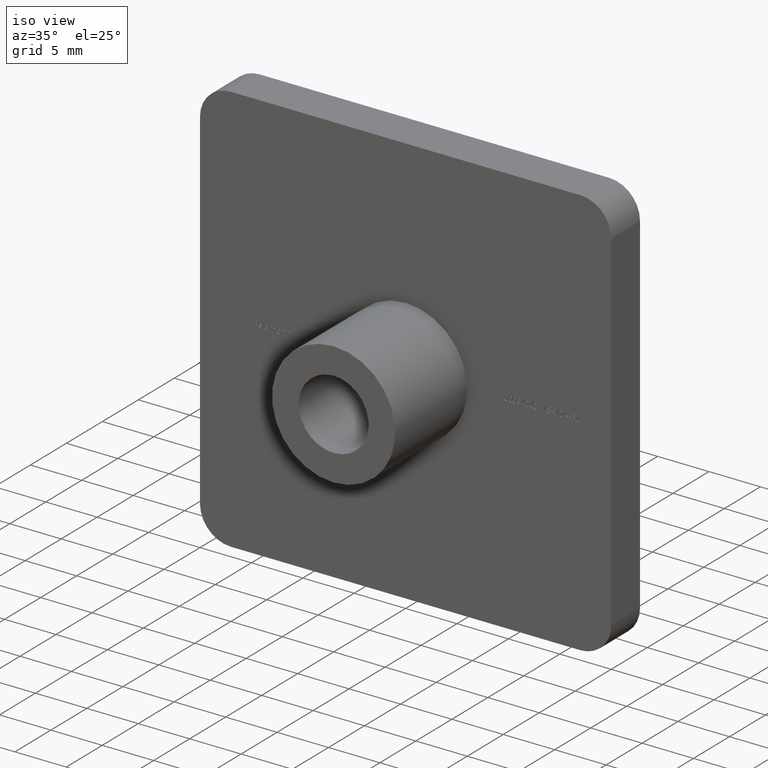
[diagram: clean part render]
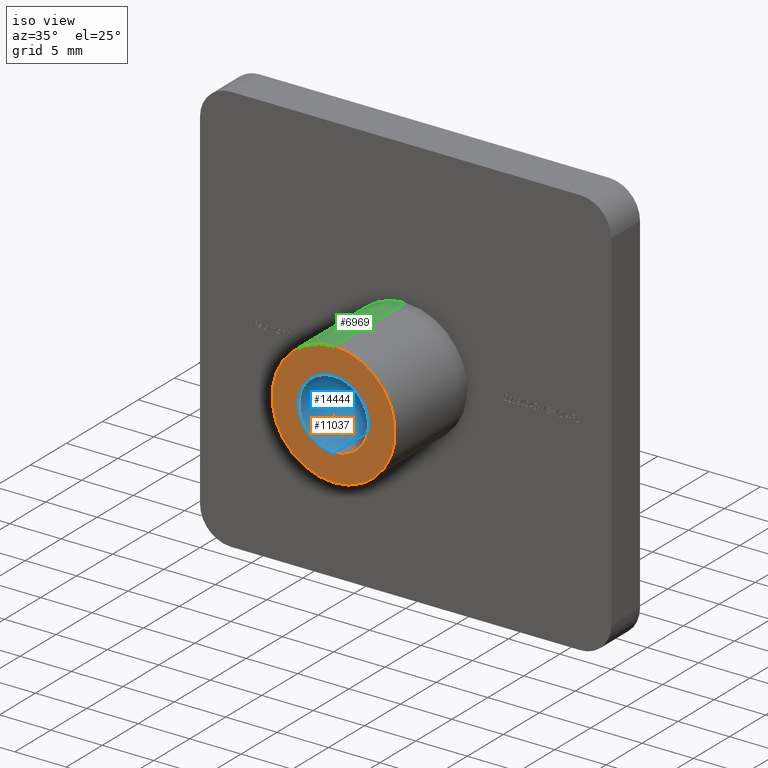
[diagram: same view with three faces highlighted in distinct colors, each labeled with its STEP entity id]
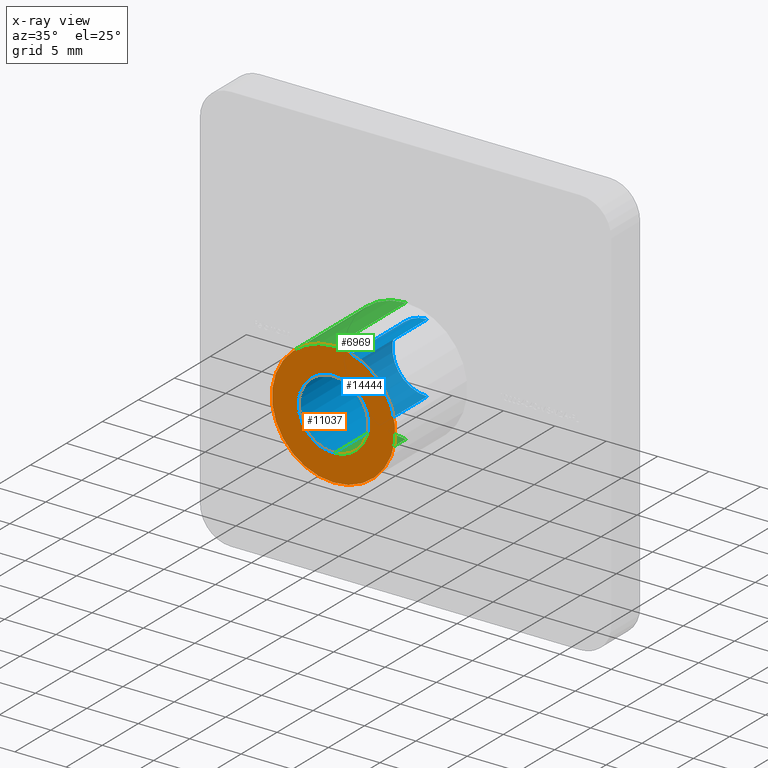
[diagram: x-ray of the same camera — body ghosted, the three highlighted faces saturated]
A machine part, iso view with three faces highlighted in distinct colors.
The next image is the same camera in x-ray (body ghosted, the three faces saturated) — at least one of them is partly hidden behind the body in this view.
Their STEP definitions:

[orange] entity #11037 — the highlighted planar face has unit normal (0, -1, 0).
#323 = PLANE ( 'NONE',  #2205 ) ;
#2019 = DIRECTION ( 'NONE',  ( 0.0000000000000000000, -1.000000000000000000, 0.0000000000000000000 ) ) ;
#2205 = AXIS2_PLACEMENT_3D ( 'NONE', #16894, #11154, #6863 ) ;
#2218 = CARTESIAN_POINT ( 'NONE',  ( 7.347880794884120700E-016, -10.00000000000000000, -6.000000000000000900 ) ) ;
#2531 = DIRECTION ( 'NONE',  ( -0.0000000000000000000, -1.000000000000000000, -0.0000000000000000000 ) ) ;
#2681 = EDGE_CURVE ( 'NONE', #14487, #17839, #10851, .T. ) ;
#3068 = EDGE_LOOP ( 'NONE', ( #13583, #9582 ) ) ;
#3330 = DIRECTION ( 'NONE',  ( 0.0000000000000000000, 0.0000000000000000000, -1.000000000000000000 ) ) ;
#3440 = DIRECTION ( 'NONE',  ( 0.0000000000000000000, 0.0000000000000000000, -1.000000000000000000 ) ) ;
#3786 = FACE_BOUND ( 'NONE', #3068, .T. ) ;
#5538 = AXIS2_PLACEMENT_3D ( 'NONE', #16183, #9184, #3330 ) ;
#6863 = DIRECTION ( 'NONE',  ( 0.0000000000000000000, -0.0000000000000000000, -1.000000000000000000 ) ) ;
#7283 = CARTESIAN_POINT ( 'NONE',  ( 0.0000000000000000000, -10.00000000000000200, -3.399999999999987900 ) ) ;
#7754 = EDGE_LOOP ( 'NONE', ( #7906, #15216 ) ) ;
#7782 = DIRECTION ( 'NONE',  ( -0.0000000000000000000, -1.000000000000000000, -0.0000000000000000000 ) ) ;
#7906 = ORIENTED_EDGE ( 'NONE', *, *, #2681, .T. ) ;
#8569 = CIRCLE ( 'NONE', #15110, 3.399999999999987900 ) ;
#9177 = EDGE_CURVE ( 'NONE', #11616, #13669, #10392, .T. ) ;
#9184 = DIRECTION ( 'NONE',  ( 0.0000000000000000000, -1.000000000000000000, 0.0000000000000000000 ) ) ;
#9582 = ORIENTED_EDGE ( 'NONE', *, *, #12625, .F. ) ;
#10392 = CIRCLE ( 'NONE', #12035, 3.399999999999987900 ) ;
#10521 = CARTESIAN_POINT ( 'NONE',  ( 4.163799117100988200E-016, -10.00000000000000200, 3.399999999999987900 ) ) ;
#10612 = FACE_OUTER_BOUND ( 'NONE', #7754, .T. ) ;
#10851 = CIRCLE ( 'NONE', #5538, 6.000000000000000900 ) ;
#11037 = ADVANCED_FACE ( 'NONE', ( #3786, #10612 ), #323, .T. ) ;
#11154 = DIRECTION ( 'NONE',  ( 0.0000000000000000000, -1.000000000000000000, 0.0000000000000000000 ) ) ;
#11155 = CARTESIAN_POINT ( 'NONE',  ( 0.0000000000000000000, -10.00000000000000200, -0.0000000000000000000 ) ) ;
#11616 = VERTEX_POINT ( 'NONE', #7283 ) ;
#12031 = DIRECTION ( 'NONE',  ( 0.0000000000000000000, 0.0000000000000000000, -1.000000000000000000 ) ) ;
#12035 = AXIS2_PLACEMENT_3D ( 'NONE', #11155, #2531, #18388 ) ;
#12221 = CARTESIAN_POINT ( 'NONE',  ( 0.0000000000000000000, -10.00000000000000200, -0.0000000000000000000 ) ) ;
#12625 = EDGE_CURVE ( 'NONE', #13669, #11616, #8569, .T. ) ;
#13301 = EDGE_CURVE ( 'NONE', #17839, #14487, #18019, .T. ) ;
#13583 = ORIENTED_EDGE ( 'NONE', *, *, #9177, .F. ) ;
#13669 = VERTEX_POINT ( 'NONE', #10521 ) ;
#13958 = AXIS2_PLACEMENT_3D ( 'NONE', #14986, #2019, #12031 ) ;
#14487 = VERTEX_POINT ( 'NONE', #16121 ) ;
#14986 = CARTESIAN_POINT ( 'NONE',  ( 0.0000000000000000000, -10.00000000000000000, 0.0000000000000000000 ) ) ;
#15110 = AXIS2_PLACEMENT_3D ( 'NONE', #12221, #7782, #3440 ) ;
#15216 = ORIENTED_EDGE ( 'NONE', *, *, #13301, .T. ) ;
#16121 = CARTESIAN_POINT ( 'NONE',  ( 0.0000000000000000000, -10.00000000000000000, 6.000000000000000900 ) ) ;
#16183 = CARTESIAN_POINT ( 'NONE',  ( 0.0000000000000000000, -10.00000000000000000, 0.0000000000000000000 ) ) ;
#16894 = CARTESIAN_POINT ( 'NONE',  ( 0.0000000000000000000, -10.00000000000000000, 0.0000000000000000000 ) ) ;
#17839 = VERTEX_POINT ( 'NONE', #2218 ) ;
#18019 = CIRCLE ( 'NONE', #13958, 6.000000000000000900 ) ;
#18388 = DIRECTION ( 'NONE',  ( 0.0000000000000000000, 0.0000000000000000000, -1.000000000000000000 ) ) ;

[blue] entity #14444 — the highlighted cylindrical surface (partial cylindrical patch) has radius 3.4 mm, axis along (-0, -1, -0).
#960 = AXIS2_PLACEMENT_3D ( 'NONE', #1412, #13055, #1535 ) ;
#1125 = ORIENTED_EDGE ( 'NONE', *, *, #11071, .F. ) ;
#1412 = CARTESIAN_POINT ( 'NONE',  ( 0.0000000000000000000, 2.999999999999988900, 0.0000000000000000000 ) ) ;
#1535 = DIRECTION ( 'NONE',  ( 0.0000000000000000000, 0.0000000000000000000, 1.000000000000000000 ) ) ;
#3167 = ORIENTED_EDGE ( 'NONE', *, *, #8824, .T. ) ;
#3401 = CARTESIAN_POINT ( 'NONE',  ( 0.0000000000000000000, 2.999999999999988900, -3.399999999999991500 ) ) ;
#3440 = DIRECTION ( 'NONE',  ( 0.0000000000000000000, 0.0000000000000000000, -1.000000000000000000 ) ) ;
#3563 = CIRCLE ( 'NONE', #960, 3.399999999999991500 ) ;
#4321 = VECTOR ( 'NONE', #8572, 1000.000000000000000 ) ;
#4572 = EDGE_LOOP ( 'NONE', ( #3167, #12289, #11265, #1125 ) ) ;
#4578 = CARTESIAN_POINT ( 'NONE',  ( 0.0000000000000000000, -10.00000000000000000, -0.0000000000000000000 ) ) ;
#4641 = DIRECTION ( 'NONE',  ( -0.0000000000000000000, -1.000000000000000000, -0.0000000000000000000 ) ) ;
#5046 = EDGE_CURVE ( 'NONE', #8929, #13669, #14241, .T. ) ;
#6043 = DIRECTION ( 'NONE',  ( 0.0000000000000000000, 0.0000000000000000000, -1.000000000000000000 ) ) ;
#7283 = CARTESIAN_POINT ( 'NONE',  ( 0.0000000000000000000, -10.00000000000000200, -3.399999999999987900 ) ) ;
#7782 = DIRECTION ( 'NONE',  ( -0.0000000000000000000, -1.000000000000000000, -0.0000000000000000000 ) ) ;
#8304 = FACE_OUTER_BOUND ( 'NONE', #4572, .T. ) ;
#8569 = CIRCLE ( 'NONE', #15110, 3.399999999999987900 ) ;
#8572 = DIRECTION ( 'NONE',  ( -0.0000000000000000000, -1.000000000000000000, -0.0000000000000000000 ) ) ;
#8824 = EDGE_CURVE ( 'NONE', #9023, #8929, #3563, .T. ) ;
#8929 = VERTEX_POINT ( 'NONE', #15559 ) ;
#9023 = VERTEX_POINT ( 'NONE', #3401 ) ;
#10521 = CARTESIAN_POINT ( 'NONE',  ( 4.163799117100988200E-016, -10.00000000000000200, 3.399999999999987900 ) ) ;
#11071 = EDGE_CURVE ( 'NONE', #9023, #11616, #12374, .T. ) ;
#11265 = ORIENTED_EDGE ( 'NONE', *, *, #12625, .T. ) ;
#11616 = VERTEX_POINT ( 'NONE', #7283 ) ;
#12113 = AXIS2_PLACEMENT_3D ( 'NONE', #4578, #4641, #6043 ) ;
#12221 = CARTESIAN_POINT ( 'NONE',  ( 0.0000000000000000000, -10.00000000000000200, -0.0000000000000000000 ) ) ;
#12289 = ORIENTED_EDGE ( 'NONE', *, *, #5046, .T. ) ;
#12372 = CARTESIAN_POINT ( 'NONE',  ( 0.0000000000000000000, -10.00000000000000000, -3.399999999999991500 ) ) ;
#12374 = LINE ( 'NONE', #12372, #17614 ) ;
#12625 = EDGE_CURVE ( 'NONE', #13669, #11616, #8569, .T. ) ;
#13055 = DIRECTION ( 'NONE',  ( -0.0000000000000000000, 1.000000000000000000, -0.0000000000000000000 ) ) ;
#13479 = CYLINDRICAL_SURFACE ( 'NONE', #12113, 3.399999999999991500 ) ;
#13669 = VERTEX_POINT ( 'NONE', #10521 ) ;
#14241 = LINE ( 'NONE', #15551, #4321 ) ;
#14444 = ADVANCED_FACE ( 'NONE', ( #8304 ), #13479, .F. ) ;
#15110 = AXIS2_PLACEMENT_3D ( 'NONE', #12221, #7782, #3440 ) ;
#15551 = CARTESIAN_POINT ( 'NONE',  ( 4.163799117100990700E-016, -10.00000000000000000, 3.399999999999991500 ) ) ;
#15559 = CARTESIAN_POINT ( 'NONE',  ( 4.163799117100990700E-016, 2.999999999999988900, 3.399999999999991500 ) ) ;
#17146 = DIRECTION ( 'NONE',  ( -0.0000000000000000000, -1.000000000000000000, -0.0000000000000000000 ) ) ;
#17614 = VECTOR ( 'NONE', #17146, 1000.000000000000000 ) ;

[green] entity #6969 — the highlighted cylindrical surface (partial cylindrical patch) has radius 6 mm, axis along (-0, 1, -0).
#1580 = ORIENTED_EDGE ( 'NONE', *, *, #3536, .F. ) ;
#2023 = AXIS2_PLACEMENT_3D ( 'NONE', #10469, #12271, #9399 ) ;
#2100 = EDGE_LOOP ( 'NONE', ( #1580, #16095, #11551, #7168 ) ) ;
#2218 = CARTESIAN_POINT ( 'NONE',  ( 7.347880794884120700E-016, -10.00000000000000000, -6.000000000000000900 ) ) ;
#2455 = CARTESIAN_POINT ( 'NONE',  ( 0.0000000000000000000, -10.00000000000000000, 6.000000000000000900 ) ) ;
#2497 = DIRECTION ( 'NONE',  ( 0.0000000000000000000, 0.0000000000000000000, 1.000000000000000000 ) ) ;
#2681 = EDGE_CURVE ( 'NONE', #14487, #17839, #10851, .T. ) ;
#2876 = CARTESIAN_POINT ( 'NONE',  ( 7.347880794884120700E-016, 0.0000000000000000000, -6.000000000000000900 ) ) ;
#3330 = DIRECTION ( 'NONE',  ( 0.0000000000000000000, 0.0000000000000000000, -1.000000000000000000 ) ) ;
#3536 = EDGE_CURVE ( 'NONE', #17839, #8859, #6395, .T. ) ;
#5510 = VERTEX_POINT ( 'NONE', #15511 ) ;
#5538 = AXIS2_PLACEMENT_3D ( 'NONE', #16183, #9184, #3330 ) ;
#5764 = LINE ( 'NONE', #2455, #9156 ) ;
#6352 = CYLINDRICAL_SURFACE ( 'NONE', #2023, 6.000000000000000900 ) ;
#6395 = LINE ( 'NONE', #12222, #15616 ) ;
#6804 = AXIS2_PLACEMENT_3D ( 'NONE', #18474, #11186, #2497 ) ;
#6969 = ADVANCED_FACE ( 'NONE', ( #17624 ), #6352, .T. ) ;
#7168 = ORIENTED_EDGE ( 'NONE', *, *, #12319, .T. ) ;
#7236 = DIRECTION ( 'NONE',  ( -0.0000000000000000000, 1.000000000000000000, -0.0000000000000000000 ) ) ;
#8859 = VERTEX_POINT ( 'NONE', #2876 ) ;
#9156 = VECTOR ( 'NONE', #7236, 1000.000000000000000 ) ;
#9184 = DIRECTION ( 'NONE',  ( 0.0000000000000000000, -1.000000000000000000, 0.0000000000000000000 ) ) ;
#9399 = DIRECTION ( 'NONE',  ( 0.0000000000000000000, 0.0000000000000000000, 1.000000000000000000 ) ) ;
#10469 = CARTESIAN_POINT ( 'NONE',  ( 0.0000000000000000000, -10.00000000000000000, 0.0000000000000000000 ) ) ;
#10851 = CIRCLE ( 'NONE', #5538, 6.000000000000000900 ) ;
#11186 = DIRECTION ( 'NONE',  ( -0.0000000000000000000, -1.000000000000000000, -0.0000000000000000000 ) ) ;
#11551 = ORIENTED_EDGE ( 'NONE', *, *, #17504, .T. ) ;
#12222 = CARTESIAN_POINT ( 'NONE',  ( 7.347880794884120700E-016, -10.00000000000000000, -6.000000000000000900 ) ) ;
#12271 = DIRECTION ( 'NONE',  ( -0.0000000000000000000, 1.000000000000000000, -0.0000000000000000000 ) ) ;
#12319 = EDGE_CURVE ( 'NONE', #5510, #8859, #12380, .T. ) ;
#12380 = CIRCLE ( 'NONE', #6804, 6.000000000000000900 ) ;
#14487 = VERTEX_POINT ( 'NONE', #16121 ) ;
#15511 = CARTESIAN_POINT ( 'NONE',  ( 0.0000000000000000000, 0.0000000000000000000, 6.000000000000000900 ) ) ;
#15616 = VECTOR ( 'NONE', #16289, 1000.000000000000000 ) ;
#16095 = ORIENTED_EDGE ( 'NONE', *, *, #2681, .F. ) ;
#16121 = CARTESIAN_POINT ( 'NONE',  ( 0.0000000000000000000, -10.00000000000000000, 6.000000000000000900 ) ) ;
#16183 = CARTESIAN_POINT ( 'NONE',  ( 0.0000000000000000000, -10.00000000000000000, 0.0000000000000000000 ) ) ;
#16289 = DIRECTION ( 'NONE',  ( -0.0000000000000000000, 1.000000000000000000, -0.0000000000000000000 ) ) ;
#17504 = EDGE_CURVE ( 'NONE', #14487, #5510, #5764, .T. ) ;
#17624 = FACE_OUTER_BOUND ( 'NONE', #2100, .T. ) ;
#17839 = VERTEX_POINT ( 'NONE', #2218 ) ;
#18474 = CARTESIAN_POINT ( 'NONE',  ( 0.0000000000000000000, 0.0000000000000000000, 0.0000000000000000000 ) ) ;